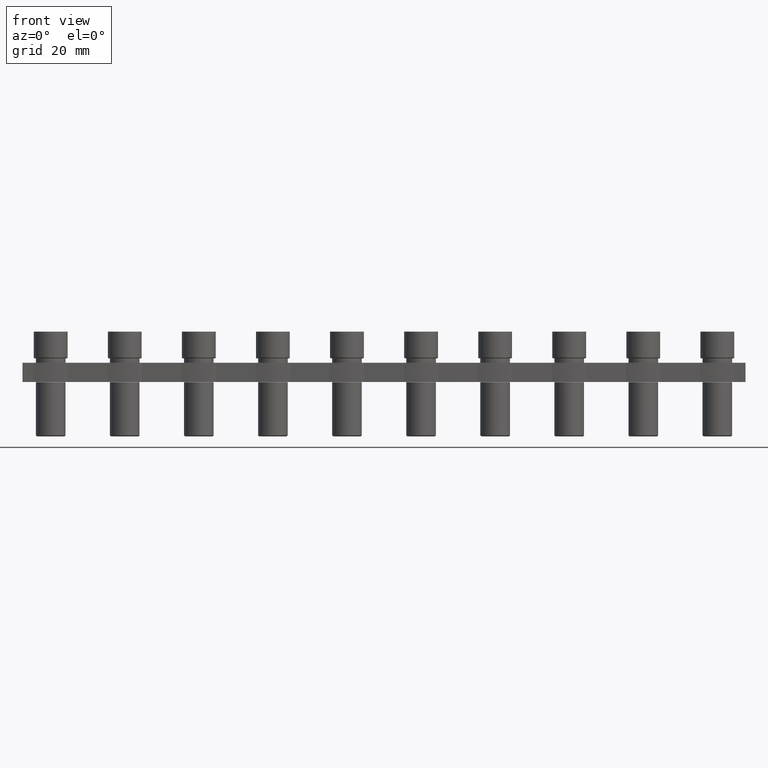
[diagram: clean part render]
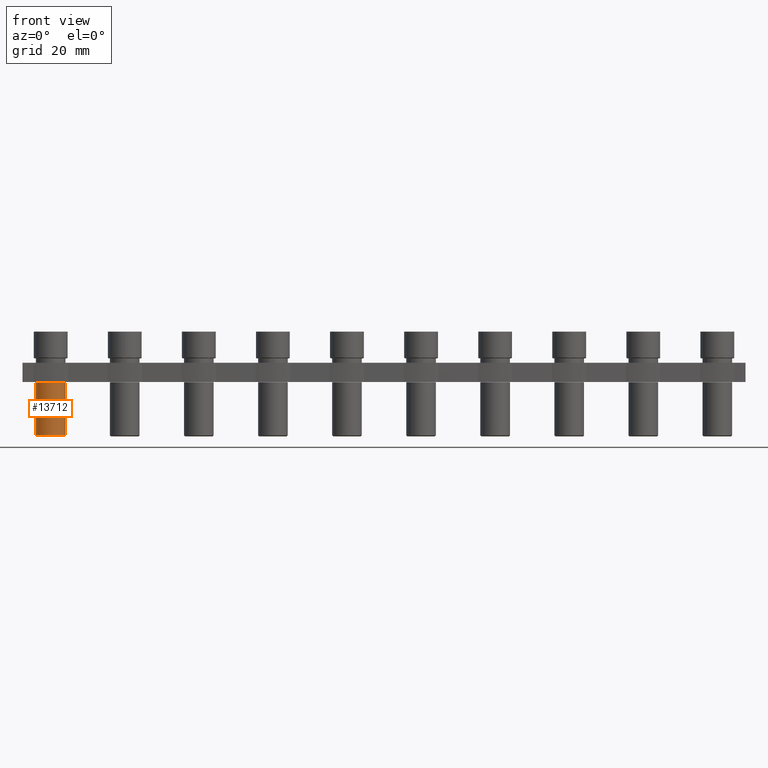
[diagram: same view with one face highlighted and labeled with its STEP entity id]
A machine part, front view. The second image highlights one B-rep face of the part: STEP entity #13712.
In plain terms, the highlighted cylindrical surface (edge-blend (fillet) strip) has radius 3 mm, axis along (-0, -0, -1).
Its self-contained STEP definition (entity closure, byte-faithful):
#6 = AXIS2_PLACEMENT_3D ( 'NONE', #6435, #6436, #6437 ) ;
#2762 = DIRECTION ( 'NONE',  ( -1.000000000000000000, 0.0000000000000000000, 0.0000000000000000000 ) ) ;
#2793 = DIRECTION ( 'NONE',  ( -0.0000000000000000000, -0.0000000000000000000, 1.000000000000000000 ) ) ;
#2824 = CARTESIAN_POINT ( 'NONE',  ( -0.001677606589130925800, 0.0000000000000000000, -4.899999999963711200 ) ) ;
#3502 = EDGE_LOOP ( 'NONE', ( #3831, #3815, #3811, #3832 ) ) ;
#3811 = ORIENTED_EDGE ( 'NONE', *, *, #12827, .T. ) ;
#3815 = ORIENTED_EDGE ( 'NONE', *, *, #13056, .F. ) ;
#3831 = ORIENTED_EDGE ( 'NONE', *, *, #12759, .F. ) ;
#3832 = ORIENTED_EDGE ( 'NONE', *, *, #13142, .T. ) ;
#6194 = VERTEX_POINT ( 'NONE', #9497 ) ;
#6198 = VERTEX_POINT ( 'NONE', #9513 ) ;
#6232 = VERTEX_POINT ( 'NONE', #9490 ) ;
#6234 = VERTEX_POINT ( 'NONE', #9573 ) ;
#6432 = CYLINDRICAL_SURFACE ( 'NONE', #6, 2.999999999999999100 ) ;
#6435 = CARTESIAN_POINT ( 'NONE',  ( -0.001677606589130925800, 0.0000000000000000000, -4.800000000000001600 ) ) ;
#6436 = DIRECTION ( 'NONE',  ( -0.0000000000000000000, -0.0000000000000000000, -1.000000000000000000 ) ) ;
#6437 = DIRECTION ( 'NONE',  ( -1.000000000000000000, 0.0000000000000000000, 0.0000000000000000000 ) ) ;
#6438 = FACE_OUTER_BOUND ( 'NONE', #3502, .T. ) ;
#7484 = CARTESIAN_POINT ( 'NONE',  ( -0.001677606589130925800, 0.0000000000000000000, -15.60000000000000000 ) ) ;
#7506 = DIRECTION ( 'NONE',  ( 0.0000000000000000000, 0.0000000000000000000, 1.000000000000000000 ) ) ;
#7517 = DIRECTION ( 'NONE',  ( -1.000000000000000000, 0.0000000000000000000, 0.0000000000000000000 ) ) ;
#9490 = CARTESIAN_POINT ( 'NONE',  ( -3.001677606638113400, 0.0000000000000000000, -4.899999999963711200 ) ) ;
#9497 = CARTESIAN_POINT ( 'NONE',  ( 2.998322393396811900, 0.0000000000000000000, -15.60000000000000000 ) ) ;
#9513 = CARTESIAN_POINT ( 'NONE',  ( -3.001677606575073700, 3.673940397424844500E-016, -15.60000000000000000 ) ) ;
#9573 = CARTESIAN_POINT ( 'NONE',  ( 2.998322393459851700, 3.673940397502046300E-016, -4.899999999963711200 ) ) ;
#9666 = LINE ( 'NONE', #9684, #11635 ) ;
#9684 = CARTESIAN_POINT ( 'NONE',  ( 2.998322393410868300, 3.673940397442058900E-016, -4.800000000000001600 ) ) ;
#9696 = DIRECTION ( 'NONE',  ( -0.0000000000000000000, -0.0000000000000000000, -1.000000000000000000 ) ) ;
#10064 = DIRECTION ( 'NONE',  ( -0.0000000000000000000, -0.0000000000000000000, -1.000000000000000000 ) ) ;
#10069 = CARTESIAN_POINT ( 'NONE',  ( -3.001677606589130000, 0.0000000000000000000, -4.800000000000001600 ) ) ;
#10110 = LINE ( 'NONE', #10069, #11689 ) ;
#11635 = VECTOR ( 'NONE', #9696, 1000.000000000000000 ) ;
#11689 = VECTOR ( 'NONE', #10064, 1000.000000000000000 ) ;
#12025 = CIRCLE ( 'NONE', #12054, 3.000000000048982600 ) ;
#12054 = AXIS2_PLACEMENT_3D ( 'NONE', #2824, #2793, #2762 ) ;
#12116 = CIRCLE ( 'NONE', #12117, 2.999999999999999100 ) ;
#12117 = AXIS2_PLACEMENT_3D ( 'NONE', #7484, #7506, #7517 ) ;
#12759 = EDGE_CURVE ( 'NONE', #6234, #6194, #9666, .T. ) ;
#12827 = EDGE_CURVE ( 'NONE', #6232, #6198, #10110, .T. ) ;
#13056 = EDGE_CURVE ( 'NONE', #6232, #6234, #12025, .T. ) ;
#13142 = EDGE_CURVE ( 'NONE', #6198, #6194, #12116, .T. ) ;
#13712 = ADVANCED_FACE ( 'NONE', ( #6438 ), #6432, .T. ) ;